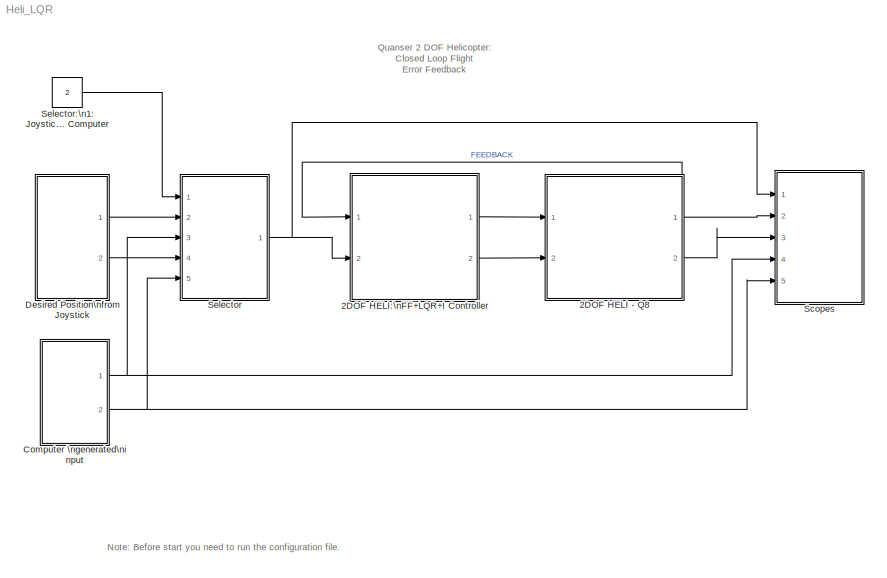
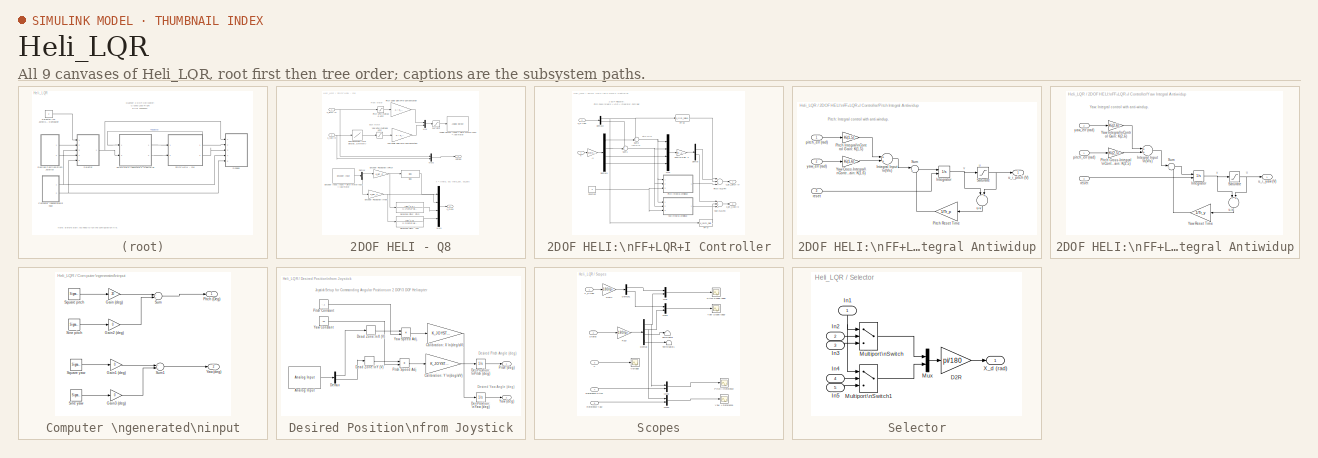
[diagram: thumbnail index - all 9 canvases of the model, root first then tree order]
MODEL Heli_LQR
KIND model
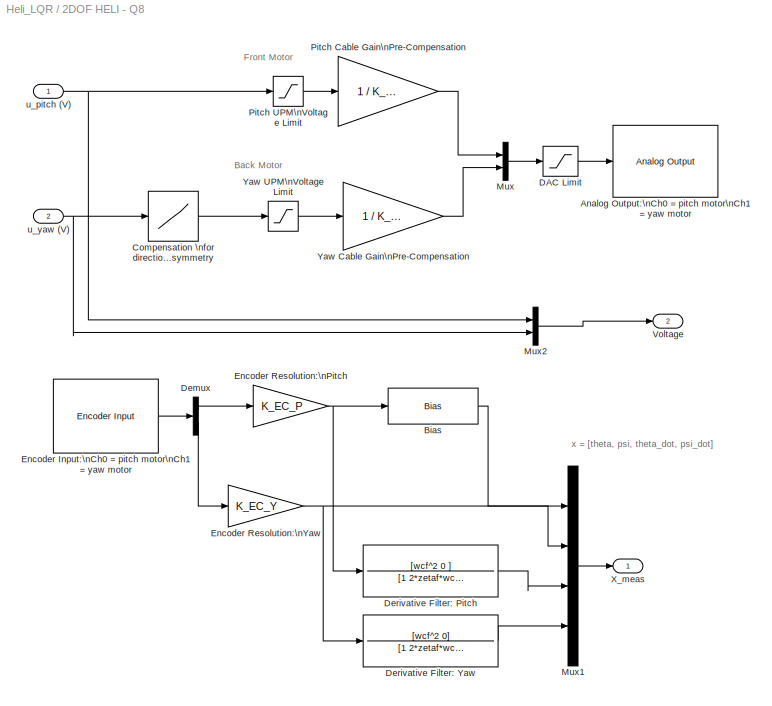
BLOCK [SubSystem] 2DOF HELI - Q8
  AncestorBlock = heli_2d_lib/2DOF HELI - Q8
  MaskHideContents = off
  MinAlgLoopOccurrences = off
  Ports = [2, 2]
  RTWSystemCode = Auto
  TreatAsAtomicUnit = off
BLOCK [Reference] 2DOF HELI - Q8/Analog Output:\nCh0 = pitch motor\nCh1 = yaw motor  REF=qctools/Quanser Consulting\nQ8 Series/Analog Output
  Ports = [1]
  SourceBlock = qctools/Quanser Consulting\nQ8 Series/Analog Output
  SourceType = Q8 Analog Output
  boardNumber = 0
  channels = [0,1]
  finalVect = 0
  initialVect = 0
  inputVolts = on
  modesVect = 0
  rangesVect = 10
  sampleTime = -1
  simulationOutput = off
BLOCK [Bias] 2DOF HELI - Q8/Bias
  Bias = theta_0
  SaturateOnIntegerOverflow = off
BLOCK [Lookup] 2DOF HELI - Q8/Compensation \nfor direction Asymmetry 
  InputValues = [-[12.5  10 7.5]  0  [7.5 10  12.5 15] ]
  OutputValues = [-[12.5  10 7.5] *.4 0  [7.5 10  12.5 15] ]
  SaturateOnIntegerOverflow = off
BLOCK [Saturate] 2DOF HELI - Q8/DAC Limit
  LowerLimit = - VMAX_DAC
  UpperLimit = VMAX_DAC
BLOCK [Demux] 2DOF HELI - Q8/Demux
  DisplayOption = bar
  Outputs = 2
  Ports = [1, 2]
BLOCK [TransferFcn] 2DOF HELI - Q8/Derivative Filter: Pitch
  Denominator = [1 2*zetaf*wcf wcf^2]
  Numerator = [wcf^2 0 ]
BLOCK [TransferFcn] 2DOF HELI - Q8/Derivative Filter: Yaw
  Denominator = [1 2*zetaf*wcf wcf^2]
  Numerator = [wcf^2 0]
BLOCK [Reference] 2DOF HELI - Q8/Encoder Input:\nCh0 = pitch motor\nCh1 = yaw motor  REF=qctools/Quanser Consulting\nQ8 Series/Encoder Input
  Ports = [0, 1]
  ShowPortLabels = on
  SourceBlock = qctools/Quanser Consulting\nQ8 Series/Encoder Input
  SourceType = Q8 Encoder Input
  bcd = off
  boardNumber = 0
  channels = [0,1]
  enableIndex = on
  flagString = FLG1 is IDX and FLG2 is E
  frequency = 16666666.6667
  indexPolarity = on
  initial = 0
  modeStr = Normal
  prescale = 1
  preserveCounts = off
  quadratureStr = 4X
  reloadOnIndex = off
  sampleTime = default_sample_time
  simulationInput = off
  synchronousIndex = on
BLOCK [Gain] 2DOF HELI - Q8/Encoder Resolution:\nPitch 
  Gain = K_EC_P
  OutDataTypeMode = Inherit via internal rule
  ParameterDataTypeMode = Inherit via internal rule
  SaturateOnIntegerOverflow = off
BLOCK [Gain] 2DOF HELI - Q8/Encoder Resolution:\nYaw
  Gain = K_EC_Y
  OutDataTypeMode = Inherit via internal rule
  ParameterDataTypeMode = Inherit via internal rule
  SaturateOnIntegerOverflow = off
BLOCK [Mux] 2DOF HELI - Q8/Mux
  DisplayOption = bar
  Inputs = 2
  Ports = [2, 1]
BLOCK [Mux] 2DOF HELI - Q8/Mux1
  DisplayOption = bar
  Ports = [4, 1]
BLOCK [Mux] 2DOF HELI - Q8/Mux2
  DisplayOption = bar
  Inputs = 2
  Ports = [2, 1]
BLOCK [Gain] 2DOF HELI - Q8/Pitch Cable Gain\nPre-Compensation
  Gain = 1 / K_CABLE_P
BLOCK [Saturate] 2DOF HELI - Q8/Pitch UPM\nVoltage Limit
  LowerLimit = - VMAX_UPM_P
  UpperLimit = VMAX_UPM_P
BLOCK [Outport] 2DOF HELI - Q8/Voltage
  BusOutputAsStruct = off
  IconDisplay = Port number
  Port = 2
BLOCK [Outport] 2DOF HELI - Q8/X_meas
  BusOutputAsStruct = off
  IconDisplay = Port number
BLOCK [Gain] 2DOF HELI - Q8/Yaw Cable Gain\nPre-Compensation
  Gain = 1 / K_CABLE_Y
BLOCK [Saturate] 2DOF HELI - Q8/Yaw UPM\nVoltage Limit
  LowerLimit = - VMAX_UPM_Y
  UpperLimit = VMAX_UPM_Y
BLOCK [Inport] 2DOF HELI - Q8/u_pitch (V)
  IconDisplay = Port number
BLOCK [Inport] 2DOF HELI - Q8/u_yaw (V)
  IconDisplay = Port number
  Port = 2
BLOCK [SubSystem] 2DOF HELI:\nFF+LQR+I Controller
  AncestorBlock = heli_2d_lib/2DOF HELI:\nFF+LQR+I Controller
  MaskHideContents = off
  MinAlgLoopOccurrences = off
  Ports = [2, 2]
  RTWSystemCode = Auto
  TreatAsAtomicUnit = off
BLOCK [Gain] 2DOF HELI:\nFF+LQR+I Controller/-X
  Gain = -eye(4,4)
  Multiplication = Matrix(K*u)
  OutDataTypeMode = Inherit via internal rule
  ParameterDataTypeMode = Inherit via internal rule
  SaturateOnIntegerOverflow = off
BLOCK [Constant] 2DOF HELI:\nFF+LQR+I Controller/Constant
  Value = 0
BLOCK [Gain] 2DOF HELI:\nFF+LQR+I Controller/Control Gain: K
  Gain = Ki(:,1:4)
  Multiplication = Matrix(K*u)
  OutDataTypeMode = Inherit via internal rule
  ParameterDataTypeMode = Inherit via internal rule
  SaturateOnIntegerOverflow = off
BLOCK [Demux] 2DOF HELI:\nFF+LQR+I Controller/Demux
  DisplayOption = bar
  Outputs = 2
  Ports = [1, 2]
BLOCK [Demux] 2DOF HELI:\nFF+LQR+I Controller/Demux1
  DisplayOption = bar
  Ports = [1, 4]
BLOCK [Demux] 2DOF HELI:\nFF+LQR+I Controller/Demux2
  DisplayOption = bar
  Outputs = 2
  Ports = [1, 2]
BLOCK [Fcn] 2DOF HELI:\nFF+LQR+I Controller/FF Vp
  Expr = K_yy*m_heli*g*(h*sin(u[1]) + Rc*cos(u[1]))  /  (K_pp*K_yy-K_py*K_yp)
BLOCK [Fcn] 2DOF HELI:\nFF+LQR+I Controller/FF Vy
  Expr = -K_yp*m_heli*g*(h*sin(u[1]) + Rc*cos(u[1]))  /  (K_pp*K_yy-K_py*K_yp)
BLOCK [Mux] 2DOF HELI:\nFF+LQR+I Controller/Mux
  DisplayOption = bar
  Ports = [4, 1]
BLOCK [SubSystem] 2DOF HELI:\nFF+LQR+I Controller/Pitch Integral Antiwidup
  AncestorBlock = heli_2d_lib/2DOF HELI:\nFF+LQR+I Controller/Yaw Integral Antiwidup
  MaskHideContents = off
  MinAlgLoopOccurrences = off
  Ports = [3, 1]
  RTWSystemCode = Auto
  TreatAsAtomicUnit = off
BLOCK [Sum] 2DOF HELI:\nFF+LQR+I Controller/Pitch Integral Antiwidup/Integral Input \n(V//s)
  InputSameDT = off
  OutDataTypeMode = Inherit via internal rule
  OutScaling = 2^-10
  Ports = [2, 1]
  SaturateOnIntegerOverflow = off
BLOCK [Integrator] 2DOF HELI:\nFF+LQR+I Controller/Pitch Integral Antiwidup/Integrator
  ExternalReset = rising
  IgnoreLimit = off
  Ports = [2, 1]
BLOCK [Gain] 2DOF HELI:\nFF+LQR+I Controller/Pitch Integral Antiwidup/Pitch Integral\nControl Gain: K(1,5)
  Gain = Ki(1,5)
  Multiplication = Matrix(K*u)
  OutDataTypeMode = Inherit via internal rule
  ParameterDataTypeMode = Inherit via internal rule
  SaturateOnIntegerOverflow = off
BLOCK [Gain] 2DOF HELI:\nFF+LQR+I Controller/Pitch Integral Antiwidup/Pitch Reset Time
  Gain = 1/Tr_p
  OutDataTypeMode = Inherit via internal rule
  ParameterDataTypeMode = Inherit via internal rule
  SaturateOnIntegerOverflow = off
BLOCK [Saturate] 2DOF HELI:\nFF+LQR+I Controller/Pitch Integral Antiwidup/Saturate
  LowerLimit = -SAT_INT_ERR_PITCH
  UpperLimit = SAT_INT_ERR_PITCH
BLOCK [Sum] 2DOF HELI:\nFF+LQR+I Controller/Pitch Integral Antiwidup/Sum
  IconShape = round
  InputSameDT = off
  Inputs = |++
  OutDataTypeMode = Inherit via internal rule
  Ports = [2, 1]
  SaturateOnIntegerOverflow = off
BLOCK [Gain] 2DOF HELI:\nFF+LQR+I Controller/Pitch Integral Antiwidup/Yaw Cross-Integral\nControl Gain: K(1,6)
  Gain = Ki(1,6)
  Multiplication = Matrix(K*u)
  OutDataTypeMode = Inherit via internal rule
  ParameterDataTypeMode = Inherit via internal rule
  SaturateOnIntegerOverflow = off
BLOCK [Inport] 2DOF HELI:\nFF+LQR+I Controller/Pitch Integral Antiwidup/pitch_err (rad)
  IconDisplay = Port number
BLOCK [Inport] 2DOF HELI:\nFF+LQR+I Controller/Pitch Integral Antiwidup/reset
  IconDisplay = Port number
  Port = 3
BLOCK [Sum] 2DOF HELI:\nFF+LQR+I Controller/Pitch Integral Antiwidup/u-v
  InputSameDT = off
  Inputs = -+
  OutDataTypeMode = Inherit via internal rule
  OutScaling = 2^-10
  Ports = [2, 1]
  SaturateOnIntegerOverflow = off
BLOCK [Outport] 2DOF HELI:\nFF+LQR+I Controller/Pitch Integral Antiwidup/u_i_pitch (V)
  BusOutputAsStruct = off
  IconDisplay = Port number
BLOCK [Inport] 2DOF HELI:\nFF+LQR+I Controller/Pitch Integral Antiwidup/yaw_err (rad)
  IconDisplay = Port number
  Port = 2
BLOCK [Sum] 2DOF HELI:\nFF+LQR+I Controller/Pitch:\nLQR+I
  InputSameDT = off
  Inputs = +++
  OutDataTypeMode = Inherit via internal rule
  OutScaling = 2^-10
  Ports = [3, 1]
  SaturateOnIntegerOverflow = off
BLOCK [Sum] 2DOF HELI:\nFF+LQR+I Controller/Sum1
  IconShape = round
  InputSameDT = off
  Inputs = ++|
  OutDataTypeMode = Inherit via internal rule
  Ports = [2, 1]
  SaturateOnIntegerOverflow = off
BLOCK [Sum] 2DOF HELI:\nFF+LQR+I Controller/Sum2
  IconShape = round
  InputSameDT = off
  Inputs = ++|
  OutDataTypeMode = Inherit via internal rule
  Ports = [2, 1]
  SaturateOnIntegerOverflow = off
BLOCK [Inport] 2DOF HELI:\nFF+LQR+I Controller/X
  IconDisplay = Port number
BLOCK [Inport] 2DOF HELI:\nFF+LQR+I Controller/X_d (rad)
  IconDisplay = Port number
  Port = 2
BLOCK [SubSystem] 2DOF HELI:\nFF+LQR+I Controller/Yaw Integral Antiwidup
  MaskHideContents = off
  MinAlgLoopOccurrences = off
  Ports = [3, 1]
  RTWSystemCode = Auto
  TreatAsAtomicUnit = off
BLOCK [Sum] 2DOF HELI:\nFF+LQR+I Controller/Yaw Integral Antiwidup/Integral Input \n(V//s)
  InputSameDT = off
  OutDataTypeMode = Inherit via internal rule
  OutScaling = 2^-10
  Ports = [2, 1]
  SaturateOnIntegerOverflow = off
BLOCK [Integrator] 2DOF HELI:\nFF+LQR+I Controller/Yaw Integral Antiwidup/Integrator
  ExternalReset = rising
  IgnoreLimit = off
  Ports = [2, 1]
BLOCK [Gain] 2DOF HELI:\nFF+LQR+I Controller/Yaw Integral Antiwidup/Pitch Cross-Integral\nControl Gain: K(2,5)
  Gain = Ki(2,5)
  Multiplication = Matrix(K*u)
  OutDataTypeMode = Inherit via internal rule
  ParameterDataTypeMode = Inherit via internal rule
  SaturateOnIntegerOverflow = off
BLOCK [Saturate] 2DOF HELI:\nFF+LQR+I Controller/Yaw Integral Antiwidup/Saturate
  LowerLimit = -SAT_INT_ERR_YAW
  UpperLimit = SAT_INT_ERR_YAW
BLOCK [Sum] 2DOF HELI:\nFF+LQR+I Controller/Yaw Integral Antiwidup/Sum
  IconShape = round
  InputSameDT = off
  Inputs = |++
  OutDataTypeMode = Inherit via internal rule
  Ports = [2, 1]
  SaturateOnIntegerOverflow = off
BLOCK [Gain] 2DOF HELI:\nFF+LQR+I Controller/Yaw Integral Antiwidup/Yaw Integral\nControl Gain: K(2,6)
  Gain = Ki(2,6)
  Multiplication = Matrix(K*u)
  OutDataTypeMode = Inherit via internal rule
  ParameterDataTypeMode = Inherit via internal rule
  SaturateOnIntegerOverflow = off
BLOCK [Gain] 2DOF HELI:\nFF+LQR+I Controller/Yaw Integral Antiwidup/Yaw Reset Time
  Gain = 1/Tr_y
  OutDataTypeMode = Inherit via internal rule
  ParameterDataTypeMode = Inherit via internal rule
  SaturateOnIntegerOverflow = off
BLOCK [Inport] 2DOF HELI:\nFF+LQR+I Controller/Yaw Integral Antiwidup/pitch_err (rad)
  IconDisplay = Port number
BLOCK [Inport] 2DOF HELI:\nFF+LQR+I Controller/Yaw Integral Antiwidup/reset
  IconDisplay = Port number
  Port = 3
BLOCK [Sum] 2DOF HELI:\nFF+LQR+I Controller/Yaw Integral Antiwidup/u-v
  InputSameDT = off
  Inputs = -+
  OutDataTypeMode = Inherit via internal rule
  OutScaling = 2^-10
  Ports = [2, 1]
  SaturateOnIntegerOverflow = off
BLOCK [Outport] 2DOF HELI:\nFF+LQR+I Controller/Yaw Integral Antiwidup/u_i_yaw (V)
  BusOutputAsStruct = off
  IconDisplay = Port number
BLOCK [Inport] 2DOF HELI:\nFF+LQR+I Controller/Yaw Integral Antiwidup/yaw_err (rad)
  IconDisplay = Port number
  Port = 2
BLOCK [Sum] 2DOF HELI:\nFF+LQR+I Controller/Yaw:\nLQR+I
  InputSameDT = off
  Inputs = +++
  OutDataTypeMode = Inherit via internal rule
  OutScaling = 2^-10
  Ports = [3, 1]
  SaturateOnIntegerOverflow = off
BLOCK [Outport] 2DOF HELI:\nFF+LQR+I Controller/u_lqr_i_pitch (V)
  BusOutputAsStruct = off
  IconDisplay = Port number
BLOCK [Outport] 2DOF HELI:\nFF+LQR+I Controller/u_lqr_i_yaw (V)
  BusOutputAsStruct = off
  IconDisplay = Port number
  Port = 2
BLOCK [SubSystem] Computer \ngenerated\ninput
  MaskHideContents = off
  MinAlgLoopOccurrences = off
  Ports = [0, 2]
  RTWSystemCode = Auto
  TreatAsAtomicUnit = off
BLOCK [Gain] Computer \ngenerated\ninput/Gain (deg)
  Gain = 20
  OutDataTypeMode = Inherit via internal rule
  ParameterDataTypeMode = Inherit via internal rule
  SaturateOnIntegerOverflow = off
BLOCK [Gain] Computer \ngenerated\ninput/Gain1 (deg)
  Gain = 0
  OutDataTypeMode = Inherit via internal rule
  ParameterDataTypeMode = Inherit via internal rule
  SaturateOnIntegerOverflow = off
BLOCK [Gain] Computer \ngenerated\ninput/Gain2 (deg)
  Gain = 0
  OutDataTypeMode = Inherit via internal rule
  ParameterDataTypeMode = Inherit via internal rule
  SaturateOnIntegerOverflow = off
BLOCK [Gain] Computer \ngenerated\ninput/Gain3 (deg)
  Gain = 0
  OutDataTypeMode = Inherit via internal rule
  ParameterDataTypeMode = Inherit via internal rule
  SaturateOnIntegerOverflow = off
BLOCK [Outport] Computer \ngenerated\ninput/Pitch (Deg)
  BusOutputAsStruct = off
  IconDisplay = Port number
BLOCK [SignalGenerator] Computer \ngenerated\ninput/Sine pitch
  Frequency = 1/30
  Ports = [0, 1]
BLOCK [SignalGenerator] Computer \ngenerated\ninput/Sine yaw
  Frequency = .02
  Ports = [0, 1]
BLOCK [SignalGenerator] Computer \ngenerated\ninput/Square pitch
  Frequency = 1/30
  Ports = [0, 1]
  WaveForm = square
BLOCK [SignalGenerator] Computer \ngenerated\ninput/Square yaw
  Frequency = 1/60*2
  Ports = [0, 1]
  WaveForm = square
BLOCK [Sum] Computer \ngenerated\ninput/Sum
  InputSameDT = off
  OutDataTypeMode = Inherit via internal rule
  Ports = [2, 1]
  SaturateOnIntegerOverflow = off
BLOCK [Sum] Computer \ngenerated\ninput/Sum1
  InputSameDT = off
  OutDataTypeMode = Inherit via internal rule
  Ports = [2, 1]
  SaturateOnIntegerOverflow = off
BLOCK [Outport] Computer \ngenerated\ninput/Yaw (deg)
  BusOutputAsStruct = off
  IconDisplay = Port number
  Port = 2
BLOCK [SubSystem] Desired Position\nfrom Joystick
  AncestorBlock = q_modules3/Joystick
  MaskHideContents = off
  MinAlgLoopOccurrences = off
  Ports = [0, 2]
  RTWSystemCode = Auto
  TreatAsAtomicUnit = off
BLOCK [Reference] Desired Position\nfrom Joystick/Analog Input  REF=qctools/Quanser Consulting\nQ8 Series/Analog Input
  Ports = [0, 1]
  SourceBlock = qctools/Quanser Consulting\nQ8 Series/Analog Input
  SourceType = Q8 Analog Input
  boardNumber = 0
  channels = [2 3]
  outputVolts = on
  sampleTime = default_sample_time
  simulationInput = off
  simultaneous = on
  useBusy = on
BLOCK [Gain] Desired Position\nfrom Joystick/Calibration: X \n(deg//s//V)
  Gain = K_JOYSTICK_X
  OutDataTypeMode = Inherit via internal rule
  ParameterDataTypeMode = Inherit via internal rule
  SaturateOnIntegerOverflow = off
BLOCK [Gain] Desired Position\nfrom Joystick/Calibration: Y \n(deg//s//V)
  Gain = K_JOYSTICK_Y
  OutDataTypeMode = Inherit via internal rule
  ParameterDataTypeMode = Inherit via internal rule
  SaturateOnIntegerOverflow = off
BLOCK [DeadZone] Desired Position\nfrom Joystick/Dead Zone:\nX (V)
  LowerValue = -JOYSTICK_X_DZ
  UpperValue = JOYSTICK_X_DZ
BLOCK [DeadZone] Desired Position\nfrom Joystick/Dead Zone:\nY (V)
  LowerValue = -JOYSTICK_Y_DZ
  UpperValue = JOYSTICK_Y_DZ
BLOCK [Demux] Desired Position\nfrom Joystick/Demux
  DisplayOption = bar
  Outputs = 2
  Ports = [1, 2]
BLOCK [Integrator] Desired Position\nfrom Joystick/Des Position: \nPitch (deg)
  IgnoreLimit = off
  InitialCondition = theta_0*180/pi
  LimitOutput = on
  LowerSaturationLimit = INT_JOYSTICK_SAT_LOWER
  Ports = [1, 1]
  UpperSaturationLimit = INT_JOYSTICK_SAT_UPPER
BLOCK [Integrator] Desired Position\nfrom Joystick/Des Position: \nYaw (deg)
  IgnoreLimit = off
  LowerSaturationLimit = -180
  Ports = [1, 1]
  UpperSaturationLimit = 180
BLOCK [Outport] Desired Position\nfrom Joystick/Pitch (deg)
  BusOutputAsStruct = off
  IconDisplay = Port number
BLOCK [Constant] Desired Position\nfrom Joystick/Pitch Constant
  Value = -.1
BLOCK [Product] Desired Position\nfrom Joystick/Pitch Speed Adj
  InputSameDT = off
  OutDataTypeMode = Inherit via internal rule
  Ports = [2, 1]
  SaturateOnIntegerOverflow = off
BLOCK [Outport] Desired Position\nfrom Joystick/Yaw (deg)
  BusOutputAsStruct = off
  IconDisplay = Port number
  Port = 2
BLOCK [Constant] Desired Position\nfrom Joystick/Yaw Constant
  Value = .05
BLOCK [Product] Desired Position\nfrom Joystick/Yaw Speed Adj.
  InputSameDT = off
  OutDataTypeMode = Inherit via internal rule
  Ports = [2, 1]
  SaturateOnIntegerOverflow = off
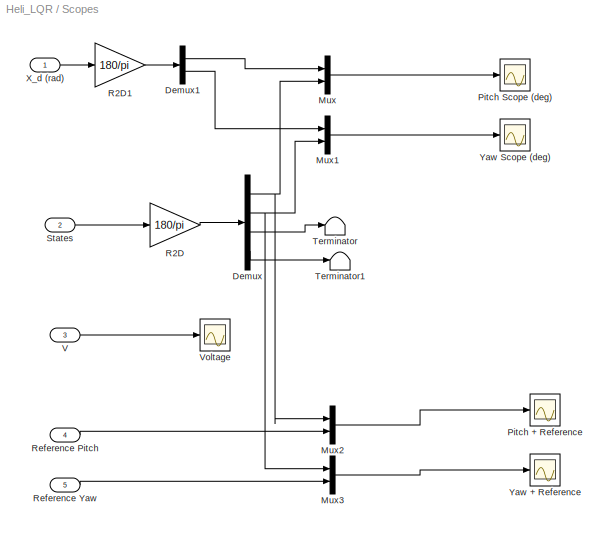
BLOCK [SubSystem] Scopes
  MaskHideContents = off
  MinAlgLoopOccurrences = off
  Ports = [5]
  RTWSystemCode = Auto
  TreatAsAtomicUnit = off
BLOCK [Demux] Scopes/Demux
  DisplayOption = bar
  Ports = [1, 4]
BLOCK [Demux] Scopes/Demux1
  DisplayOption = bar
  Outputs = 2
  Ports = [1, 2]
BLOCK [Mux] Scopes/Mux
  DisplayOption = bar
  Inputs = 2
  Ports = [2, 1]
BLOCK [Mux] Scopes/Mux1
  DisplayOption = bar
  Inputs = 2
  Ports = [2, 1]
BLOCK [Mux] Scopes/Mux2
  DisplayOption = bar
  Inputs = 2
  Ports = [2, 1]
BLOCK [Mux] Scopes/Mux3
  DisplayOption = bar
  Inputs = 2
  Ports = [2, 1]
BLOCK [Scope] Scopes/Pitch + Reference
  DataFormat = StructureWithTime
  Floating = off
  NumInputPorts = 1
  Ports = [1]
  SampleTime = 0
  SaveName = ScopeData1
BLOCK [Scope] Scopes/Pitch Scope (deg)
  DataFormat = StructureWithTime
  Floating = off
  NumInputPorts = 1
  Ports = [1]
  SampleTime = 0
  SaveName = ScopeData6
BLOCK [Gain] Scopes/R2D
  Gain = 180/pi
  OutDataTypeMode = Inherit via internal rule
  ParameterDataTypeMode = Inherit via internal rule
  SaturateOnIntegerOverflow = off
BLOCK [Gain] Scopes/R2D1
  Gain = 180/pi
  OutDataTypeMode = Inherit via internal rule
  ParameterDataTypeMode = Inherit via internal rule
  SaturateOnIntegerOverflow = off
BLOCK [Inport] Scopes/Reference Pitch
  IconDisplay = Port number
  Port = 4
BLOCK [Inport] Scopes/Reference Yaw
  IconDisplay = Port number
  Port = 5
BLOCK [Inport] Scopes/States
  IconDisplay = Port number
  Port = 2
BLOCK [Terminator] Scopes/Terminator
BLOCK [Terminator] Scopes/Terminator1
BLOCK [Inport] Scopes/V
  IconDisplay = Port number
  Port = 3
BLOCK [Scope] Scopes/Voltage
  DataFormat = StructureWithTime
  Floating = off
  NumInputPorts = 1
  Ports = [1]
  SampleTime = 0
BLOCK [Inport] Scopes/X_d  (rad)
  IconDisplay = Port number
BLOCK [Scope] Scopes/Yaw + Reference
  DataFormat = StructureWithTime
  Floating = off
  NumInputPorts = 1
  Ports = [1]
  SampleTime = 0
  SaveName = ScopeData2
BLOCK [Scope] Scopes/Yaw Scope (deg)
  DataFormat = StructureWithTime
  Floating = off
  NumInputPorts = 1
  Ports = [1]
  SampleTime = 0
  SaveName = ScopeData7
BLOCK [SubSystem] Selector
  MaskHideContents = off
  MinAlgLoopOccurrences = off
  Ports = [5, 1]
  RTWSystemCode = Auto
  TreatAsAtomicUnit = off
BLOCK [Gain] Selector/D2R
  Gain = pi/180
  OutDataTypeMode = Inherit via internal rule
  ParameterDataTypeMode = Inherit via internal rule
  SaturateOnIntegerOverflow = off
BLOCK [Inport] Selector/In1
  IconDisplay = Port number
BLOCK [Inport] Selector/In2
  IconDisplay = Port number
  Port = 2
BLOCK [Inport] Selector/In3
  IconDisplay = Port number
  Port = 3
BLOCK [Inport] Selector/In4
  IconDisplay = Port number
  Port = 4
BLOCK [Inport] Selector/In5
  IconDisplay = Port number
  Port = 5
BLOCK [MultiPortSwitch] Selector/Multiport\nSwitch
  InputSameDT = off
  Inputs = 2
  Ports = [3, 1]
  SaturateOnIntegerOverflow = off
BLOCK [MultiPortSwitch] Selector/Multiport\nSwitch1
  InputSameDT = off
  Inputs = 2
  Ports = [3, 1]
  SaturateOnIntegerOverflow = off
BLOCK [Mux] Selector/Mux
  DisplayOption = bar
  Inputs = 2
  Ports = [2, 1]
BLOCK [Outport] Selector/X_d (rad)
  BusOutputAsStruct = off
  IconDisplay = Port number
BLOCK [Constant] Selector:\n1: Joystick\n2: Computer
  Value = 2
ANNOTATION (root): Note: Before start you need to run the configuration file.
ANNOTATION (root): Quanser 2 DOF Helicopter:\nClosed Loop Flight\nError Feedback
ANNOTATION 2DOF HELI - Q8: Back Motor
ANNOTATION 2DOF HELI - Q8: Front Motor
ANNOTATION 2DOF HELI - Q8: x = [theta, psi, theta_dot, psi_dot]
ANNOTATION 2DOF HELI:\nFF+LQR+I Controller: 2 DOF Helicopter:\nPitch Feed-forward + LQR + Integrator Controller
ANNOTATION 2DOF HELI:\nFF+LQR+I Controller: pitch error
ANNOTATION 2DOF HELI:\nFF+LQR+I Controller: yaw error
ANNOTATION 2DOF HELI:\nFF+LQR+I Controller/Pitch Integral Antiwidup: Pitch: Integral control with anti-windup.
ANNOTATION 2DOF HELI:\nFF+LQR+I Controller/Pitch Integral Antiwidup: u
ANNOTATION 2DOF HELI:\nFF+LQR+I Controller/Pitch Integral Antiwidup: v
ANNOTATION 2DOF HELI:\nFF+LQR+I Controller/Yaw Integral Antiwidup: Yaw: Integral control with anti-windup.
ANNOTATION 2DOF HELI:\nFF+LQR+I Controller/Yaw Integral Antiwidup: u
ANNOTATION 2DOF HELI:\nFF+LQR+I Controller/Yaw Integral Antiwidup: v
ANNOTATION Desired Position\nfrom Joystick: Desired Pitch Angle (deg)
ANNOTATION Desired Position\nfrom Joystick: Desired Yaw Angle (deg)
ANNOTATION Desired Position\nfrom Joystick: Joystick Setup for Commanding Angular Positions on 2 DOF/3 DOF Helicopter
LINE 2DOF HELI - Q8/Bias:1 -> 2DOF HELI - Q8/Mux1:1
LINE 2DOF HELI - Q8/Compensation \nfor direction Asymmetry :1 -> 2DOF HELI - Q8/Yaw UPM\nVoltage Limit:1
LINE 2DOF HELI - Q8/DAC Limit:1 -> 2DOF HELI - Q8/Analog Output:\nCh0 = pitch motor\nCh1 = yaw motor:1
LINE 2DOF HELI - Q8/Demux:1 -> 2DOF HELI - Q8/Encoder Resolution:\nPitch :1
LINE 2DOF HELI - Q8/Demux:2 -> 2DOF HELI - Q8/Encoder Resolution:\nYaw:1
LINE 2DOF HELI - Q8/Derivative Filter: Pitch:1 -> 2DOF HELI - Q8/Mux1:3
LINE 2DOF HELI - Q8/Derivative Filter: Yaw:1 -> 2DOF HELI - Q8/Mux1:4
LINE 2DOF HELI - Q8/Encoder Input:\nCh0 = pitch motor\nCh1 = yaw motor:1 -> 2DOF HELI - Q8/Demux:1
NET 2DOF HELI - Q8/Encoder Resolution:\nPitch :1 -> 2DOF HELI - Q8/Bias:1, 2DOF HELI - Q8/Derivative Filter: Pitch:1
NET 2DOF HELI - Q8/Encoder Resolution:\nYaw:1 -> 2DOF HELI - Q8/Derivative Filter: Yaw:1, 2DOF HELI - Q8/Mux1:2
LINE 2DOF HELI - Q8/Mux1:1 -> 2DOF HELI - Q8/X_meas:1
LINE 2DOF HELI - Q8/Mux2:1 -> 2DOF HELI - Q8/Voltage:1
LINE 2DOF HELI - Q8/Mux:1 -> 2DOF HELI - Q8/DAC Limit:1
LINE 2DOF HELI - Q8/Pitch Cable Gain\nPre-Compensation:1 -> 2DOF HELI - Q8/Mux:1
LINE 2DOF HELI - Q8/Pitch UPM\nVoltage Limit:1 -> 2DOF HELI - Q8/Pitch Cable Gain\nPre-Compensation:1
LINE 2DOF HELI - Q8/Yaw Cable Gain\nPre-Compensation:1 -> 2DOF HELI - Q8/Mux:2
LINE 2DOF HELI - Q8/Yaw UPM\nVoltage Limit:1 -> 2DOF HELI - Q8/Yaw Cable Gain\nPre-Compensation:1
NET 2DOF HELI - Q8/u_pitch (V):1 -> 2DOF HELI - Q8/Mux2:1, 2DOF HELI - Q8/Pitch UPM\nVoltage Limit:1
NET 2DOF HELI - Q8/u_yaw (V):1 -> 2DOF HELI - Q8/Compensation \nfor direction Asymmetry :1, 2DOF HELI - Q8/Mux2:2
NET 2DOF HELI - Q8:1 -> 2DOF HELI:\nFF+LQR+I Controller:1, Scopes:2
LINE 2DOF HELI - Q8:2 -> Scopes:3
LINE 2DOF HELI:\nFF+LQR+I Controller/-X:1 -> 2DOF HELI:\nFF+LQR+I Controller/Demux1:1
NET 2DOF HELI:\nFF+LQR+I Controller/Constant:1 -> 2DOF HELI:\nFF+LQR+I Controller/Pitch Integral Antiwidup:3, 2DOF HELI:\nFF+LQR+I Controller/Yaw Integral Antiwidup:3
LINE 2DOF HELI:\nFF+LQR+I Controller/Control Gain: K:1 -> 2DOF HELI:\nFF+LQR+I Controller/Demux:1
LINE 2DOF HELI:\nFF+LQR+I Controller/Demux1:1 -> 2DOF HELI:\nFF+LQR+I Controller/Sum2:2
LINE 2DOF HELI:\nFF+LQR+I Controller/Demux1:2 -> 2DOF HELI:\nFF+LQR+I Controller/Sum1:2
LINE 2DOF HELI:\nFF+LQR+I Controller/Demux1:3 -> 2DOF HELI:\nFF+LQR+I Controller/Mux:3
LINE 2DOF HELI:\nFF+LQR+I Controller/Demux1:4 -> 2DOF HELI:\nFF+LQR+I Controller/Mux:4
NET 2DOF HELI:\nFF+LQR+I Controller/Demux2:1 -> 2DOF HELI:\nFF+LQR+I Controller/FF Vp:1, 2DOF HELI:\nFF+LQR+I Controller/FF Vy:1, 2DOF HELI:\nFF+LQR+I Controller/Sum2:1
LINE 2DOF HELI:\nFF+LQR+I Controller/Demux2:2 -> 2DOF HELI:\nFF+LQR+I Controller/Sum1:1
LINE 2DOF HELI:\nFF+LQR+I Controller/Demux:1 -> 2DOF HELI:\nFF+LQR+I Controller/Pitch:\nLQR+I:2
LINE 2DOF HELI:\nFF+LQR+I Controller/Demux:2 -> 2DOF HELI:\nFF+LQR+I Controller/Yaw:\nLQR+I:1
LINE 2DOF HELI:\nFF+LQR+I Controller/FF Vp:1 -> 2DOF HELI:\nFF+LQR+I Controller/Pitch:\nLQR+I:1
LINE 2DOF HELI:\nFF+LQR+I Controller/FF Vy:1 -> 2DOF HELI:\nFF+LQR+I Controller/Yaw:\nLQR+I:3
LINE 2DOF HELI:\nFF+LQR+I Controller/Mux:1 -> 2DOF HELI:\nFF+LQR+I Controller/Control Gain: K:1
LINE 2DOF HELI:\nFF+LQR+I Controller/Pitch Integral Antiwidup/Integral Input \n(V//s):1 -> 2DOF HELI:\nFF+LQR+I Controller/Pitch Integral Antiwidup/Sum:1
NET 2DOF HELI:\nFF+LQR+I Controller/Pitch Integral Antiwidup/Integrator:1 -> 2DOF HELI:\nFF+LQR+I Controller/Pitch Integral Antiwidup/Saturate:1, 2DOF HELI:\nFF+LQR+I Controller/Pitch Integral Antiwidup/u-v:1
LINE 2DOF HELI:\nFF+LQR+I Controller/Pitch Integral Antiwidup/Pitch Integral\nControl Gain: K(1,5):1 -> 2DOF HELI:\nFF+LQR+I Controller/Pitch Integral Antiwidup/Integral Input \n(V//s):1
LINE 2DOF HELI:\nFF+LQR+I Controller/Pitch Integral Antiwidup/Pitch Reset Time:1 -> 2DOF HELI:\nFF+LQR+I Controller/Pitch Integral Antiwidup/Sum:2
NET 2DOF HELI:\nFF+LQR+I Controller/Pitch Integral Antiwidup/Saturate:1 -> 2DOF HELI:\nFF+LQR+I Controller/Pitch Integral Antiwidup/u-v:2, 2DOF HELI:\nFF+LQR+I Controller/Pitch Integral Antiwidup/u_i_pitch (V):1
LINE 2DOF HELI:\nFF+LQR+I Controller/Pitch Integral Antiwidup/Sum:1 -> 2DOF HELI:\nFF+LQR+I Controller/Pitch Integral Antiwidup/Integrator:1
LINE 2DOF HELI:\nFF+LQR+I Controller/Pitch Integral Antiwidup/Yaw Cross-Integral\nControl Gain: K(1,6):1 -> 2DOF HELI:\nFF+LQR+I Controller/Pitch Integral Antiwidup/Integral Input \n(V//s):2
LINE 2DOF HELI:\nFF+LQR+I Controller/Pitch Integral Antiwidup/pitch_err (rad):1 -> 2DOF HELI:\nFF+LQR+I Controller/Pitch Integral Antiwidup/Pitch Integral\nControl Gain: K(1,5):1
LINE 2DOF HELI:\nFF+LQR+I Controller/Pitch Integral Antiwidup/reset:1 -> 2DOF HELI:\nFF+LQR+I Controller/Pitch Integral Antiwidup/Integrator:2
LINE 2DOF HELI:\nFF+LQR+I Controller/Pitch Integral Antiwidup/u-v:1 -> 2DOF HELI:\nFF+LQR+I Controller/Pitch Integral Antiwidup/Pitch Reset Time:1
LINE 2DOF HELI:\nFF+LQR+I Controller/Pitch Integral Antiwidup/yaw_err (rad):1 -> 2DOF HELI:\nFF+LQR+I Controller/Pitch Integral Antiwidup/Yaw Cross-Integral\nControl Gain: K(1,6):1
LINE 2DOF HELI:\nFF+LQR+I Controller/Pitch Integral Antiwidup:1 -> 2DOF HELI:\nFF+LQR+I Controller/Pitch:\nLQR+I:3
LINE 2DOF HELI:\nFF+LQR+I Controller/Pitch:\nLQR+I:1 -> 2DOF HELI:\nFF+LQR+I Controller/u_lqr_i_pitch (V):1
NET 2DOF HELI:\nFF+LQR+I Controller/Sum1:1 -> 2DOF HELI:\nFF+LQR+I Controller/Mux:2, 2DOF HELI:\nFF+LQR+I Controller/Pitch Integral Antiwidup:2, 2DOF HELI:\nFF+LQR+I Controller/Yaw Integral Antiwidup:2
NET 2DOF HELI:\nFF+LQR+I Controller/Sum2:1 -> 2DOF HELI:\nFF+LQR+I Controller/Mux:1, 2DOF HELI:\nFF+LQR+I Controller/Pitch Integral Antiwidup:1, 2DOF HELI:\nFF+LQR+I Controller/Yaw Integral Antiwidup:1
LINE 2DOF HELI:\nFF+LQR+I Controller/X:1 -> 2DOF HELI:\nFF+LQR+I Controller/-X:1
LINE 2DOF HELI:\nFF+LQR+I Controller/X_d (rad):1 -> 2DOF HELI:\nFF+LQR+I Controller/Demux2:1
LINE 2DOF HELI:\nFF+LQR+I Controller/Yaw Integral Antiwidup/Integral Input \n(V//s):1 -> 2DOF HELI:\nFF+LQR+I Controller/Yaw Integral Antiwidup/Sum:1
NET 2DOF HELI:\nFF+LQR+I Controller/Yaw Integral Antiwidup/Integrator:1 -> 2DOF HELI:\nFF+LQR+I Controller/Yaw Integral Antiwidup/Saturate:1, 2DOF HELI:\nFF+LQR+I Controller/Yaw Integral Antiwidup/u-v:1
LINE 2DOF HELI:\nFF+LQR+I Controller/Yaw Integral Antiwidup/Pitch Cross-Integral\nControl Gain: K(2,5):1 -> 2DOF HELI:\nFF+LQR+I Controller/Yaw Integral Antiwidup/Integral Input \n(V//s):2
NET 2DOF HELI:\nFF+LQR+I Controller/Yaw Integral Antiwidup/Saturate:1 -> 2DOF HELI:\nFF+LQR+I Controller/Yaw Integral Antiwidup/u-v:2, 2DOF HELI:\nFF+LQR+I Controller/Yaw Integral Antiwidup/u_i_yaw (V):1
LINE 2DOF HELI:\nFF+LQR+I Controller/Yaw Integral Antiwidup/Sum:1 -> 2DOF HELI:\nFF+LQR+I Controller/Yaw Integral Antiwidup/Integrator:1
LINE 2DOF HELI:\nFF+LQR+I Controller/Yaw Integral Antiwidup/Yaw Integral\nControl Gain: K(2,6):1 -> 2DOF HELI:\nFF+LQR+I Controller/Yaw Integral Antiwidup/Integral Input \n(V//s):1
LINE 2DOF HELI:\nFF+LQR+I Controller/Yaw Integral Antiwidup/Yaw Reset Time:1 -> 2DOF HELI:\nFF+LQR+I Controller/Yaw Integral Antiwidup/Sum:2
LINE 2DOF HELI:\nFF+LQR+I Controller/Yaw Integral Antiwidup/pitch_err (rad):1 -> 2DOF HELI:\nFF+LQR+I Controller/Yaw Integral Antiwidup/Pitch Cross-Integral\nControl Gain: K(2,5):1
LINE 2DOF HELI:\nFF+LQR+I Controller/Yaw Integral Antiwidup/reset:1 -> 2DOF HELI:\nFF+LQR+I Controller/Yaw Integral Antiwidup/Integrator:2
LINE 2DOF HELI:\nFF+LQR+I Controller/Yaw Integral Antiwidup/u-v:1 -> 2DOF HELI:\nFF+LQR+I Controller/Yaw Integral Antiwidup/Yaw Reset Time:1
LINE 2DOF HELI:\nFF+LQR+I Controller/Yaw Integral Antiwidup/yaw_err (rad):1 -> 2DOF HELI:\nFF+LQR+I Controller/Yaw Integral Antiwidup/Yaw Integral\nControl Gain: K(2,6):1
LINE 2DOF HELI:\nFF+LQR+I Controller/Yaw Integral Antiwidup:1 -> 2DOF HELI:\nFF+LQR+I Controller/Yaw:\nLQR+I:2
LINE 2DOF HELI:\nFF+LQR+I Controller/Yaw:\nLQR+I:1 -> 2DOF HELI:\nFF+LQR+I Controller/u_lqr_i_yaw (V):1
LINE 2DOF HELI:\nFF+LQR+I Controller:1 -> 2DOF HELI - Q8:1
LINE 2DOF HELI:\nFF+LQR+I Controller:2 -> 2DOF HELI - Q8:2
LINE Computer \ngenerated\ninput/Gain (deg):1 -> Computer \ngenerated\ninput/Sum:1
LINE Computer \ngenerated\ninput/Gain1 (deg):1 -> Computer \ngenerated\ninput/Sum1:1
LINE Computer \ngenerated\ninput/Gain2 (deg):1 -> Computer \ngenerated\ninput/Sum:2
LINE Computer \ngenerated\ninput/Gain3 (deg):1 -> Computer \ngenerated\ninput/Sum1:2
LINE Computer \ngenerated\ninput/Sine pitch:1 -> Computer \ngenerated\ninput/Gain2 (deg):1
LINE Computer \ngenerated\ninput/Sine yaw:1 -> Computer \ngenerated\ninput/Gain3 (deg):1
LINE Computer \ngenerated\ninput/Square pitch:1 -> Computer \ngenerated\ninput/Gain (deg):1
LINE Computer \ngenerated\ninput/Square yaw:1 -> Computer \ngenerated\ninput/Gain1 (deg):1
LINE Computer \ngenerated\ninput/Sum1:1 -> Computer \ngenerated\ninput/Yaw (deg):1
LINE Computer \ngenerated\ninput/Sum:1 -> Computer \ngenerated\ninput/Pitch (Deg):1
NET Computer \ngenerated\ninput:1 -> Scopes:4, Selector:3
NET Computer \ngenerated\ninput:2 -> Scopes:5, Selector:5
LINE Desired Position\nfrom Joystick/Analog Input:1 -> Desired Position\nfrom Joystick/Demux:1
LINE Desired Position\nfrom Joystick/Calibration: X \n(deg//s//V):1 -> Desired Position\nfrom Joystick/Des Position: \nYaw (deg):1
LINE Desired Position\nfrom Joystick/Calibration: Y \n(deg//s//V):1 -> Desired Position\nfrom Joystick/Des Position: \nPitch (deg):1
LINE Desired Position\nfrom Joystick/Dead Zone:\nX (V):1 -> Desired Position\nfrom Joystick/Yaw Speed Adj.:1
LINE Desired Position\nfrom Joystick/Dead Zone:\nY (V):1 -> Desired Position\nfrom Joystick/Pitch Speed Adj:1
LINE Desired Position\nfrom Joystick/Demux:1 -> Desired Position\nfrom Joystick/Dead Zone:\nX (V):1
LINE Desired Position\nfrom Joystick/Demux:2 -> Desired Position\nfrom Joystick/Dead Zone:\nY (V):1
LINE Desired Position\nfrom Joystick/Des Position: \nPitch (deg):1 -> Desired Position\nfrom Joystick/Pitch (deg):1
LINE Desired Position\nfrom Joystick/Des Position: \nYaw (deg):1 -> Desired Position\nfrom Joystick/Yaw (deg):1
LINE Desired Position\nfrom Joystick/Pitch Constant:1 -> Desired Position\nfrom Joystick/Yaw Speed Adj.:2
LINE Desired Position\nfrom Joystick/Pitch Speed Adj:1 -> Desired Position\nfrom Joystick/Calibration: Y \n(deg//s//V):1
LINE Desired Position\nfrom Joystick/Yaw Constant:1 -> Desired Position\nfrom Joystick/Pitch Speed Adj:2
LINE Desired Position\nfrom Joystick/Yaw Speed Adj.:1 -> Desired Position\nfrom Joystick/Calibration: X \n(deg//s//V):1
LINE Desired Position\nfrom Joystick:1 -> Selector:2
LINE Desired Position\nfrom Joystick:2 -> Selector:4
LINE Scopes/Demux1:1 -> Scopes/Mux:1
LINE Scopes/Demux1:2 -> Scopes/Mux1:1
NET Scopes/Demux:1 -> Scopes/Mux2:1, Scopes/Mux:2
NET Scopes/Demux:2 -> Scopes/Mux1:2, Scopes/Mux3:1
LINE Scopes/Demux:3 -> Scopes/Terminator:1
LINE Scopes/Demux:4 -> Scopes/Terminator1:1
LINE Scopes/Mux1:1 -> Scopes/Yaw Scope (deg):1
LINE Scopes/Mux2:1 -> Scopes/Pitch + Reference:1
LINE Scopes/Mux3:1 -> Scopes/Yaw + Reference:1
LINE Scopes/Mux:1 -> Scopes/Pitch Scope (deg):1
LINE Scopes/R2D1:1 -> Scopes/Demux1:1
LINE Scopes/R2D:1 -> Scopes/Demux:1
LINE Scopes/Reference Pitch:1 -> Scopes/Mux2:2
LINE Scopes/Reference Yaw:1 -> Scopes/Mux3:2
LINE Scopes/States:1 -> Scopes/R2D:1
LINE Scopes/V:1 -> Scopes/Voltage:1
LINE Scopes/X_d  (rad):1 -> Scopes/R2D1:1
LINE Selector/D2R:1 -> Selector/X_d (rad):1
NET Selector/In1:1 -> Selector/Multiport\nSwitch1:1, Selector/Multiport\nSwitch:1
LINE Selector/In2:1 -> Selector/Multiport\nSwitch:2
LINE Selector/In3:1 -> Selector/Multiport\nSwitch:3
LINE Selector/In4:1 -> Selector/Multiport\nSwitch1:2
LINE Selector/In5:1 -> Selector/Multiport\nSwitch1:3
LINE Selector/Multiport\nSwitch1:1 -> Selector/Mux:2
LINE Selector/Multiport\nSwitch:1 -> Selector/Mux:1
LINE Selector/Mux:1 -> Selector/D2R:1
NET Selector:1 -> 2DOF HELI:\nFF+LQR+I Controller:2, Scopes:1
LINE Selector:\n1: Joystick\n2: Computer:1 -> Selector:1
note: NET lines group one-source signal fan-out (src -> all destinations, sorted); 1:1 wires keep LINE
